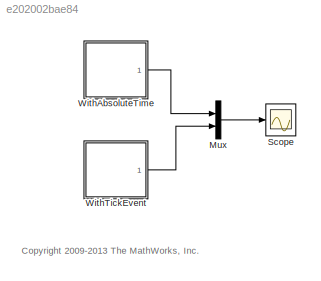
MODEL slx_e202002bae84
KIND model
CONFIG AbsTol = auto
CONFIG EnableMultiTasking = on
CONFIG FixedStep = 0.1
CONFIG MaxStep = auto
CONFIG MinStep = auto
CONFIG RelTol = 1e-3
CONFIG SampleTimeConstraint = Unconstrained
CONFIG Solver = FixedStepDiscrete
CONFIG SolverName = FixedStepDiscrete
CONFIG StartTime = 0.0
CONFIG StopTime = 10.0
BLOCK [Mux] Mux
  DisplayOption = bar
  Inputs = 2
  Ports = [2, 1]
BLOCK [Scope] Scope
  NumInputPorts = 1
  Ports = [1]
  ScopeSpecificationString = Simulink.scopes.TimeScopeBlockCfg('CurrentConfiguration', extmgr.ConfigurationSet(extmgr.Configuration('Core','General UI',true),extmgr.Configuration('Core','Source UI',true),extmgr.Configuration('Sources','WiredSimulink',true,'DataLoggingSaveFormat','StructureWithTime'),extmgr.Configuration('Visuals','Time Domain',true,'SerializedDisplays',{struct('MinYLimReal','0','MaxYLimReal','1','YLabelReal',...<+1677ch>
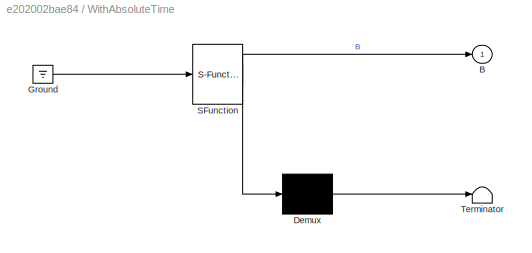
BLOCK [SubSystem] WithAbsoluteTime
  ErrorFcn = Stateflow.Translate.translate
  PermitHierarchicalResolution = ExplicitOnly
  Ports = [0, 1]
  RequestExecContextInheritance = off
  SFBlockType = Chart
  TreatAsAtomicUnit = on
  Variant = off
BLOCK [Outport] WithAbsoluteTime/ B
  IconDisplay = Port number
BLOCK [Demux] WithAbsoluteTime/ Demux 
  Outputs = 1
  Ports = [1, 1]
BLOCK [Ground] WithAbsoluteTime/ Ground 
BLOCK [S-Function] WithAbsoluteTime/ SFunction 
  EnableBusSupport = off
  FunctionName = sf_sfun
  PortCounts = [1 2]
  Ports = [1, 2]
  SFcnIsStateOwnerBlock = off
  SFunctionDeploymentMode = off
  Tag = Stateflow S-Function sf_abstemporal_basic 1
BLOCK [Terminator] WithAbsoluteTime/ Terminator 
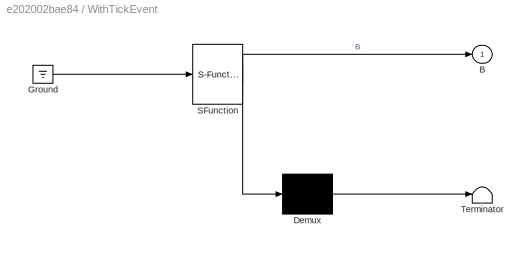
BLOCK [SubSystem] WithTickEvent
  ErrorFcn = Stateflow.Translate.translate
  PermitHierarchicalResolution = ExplicitOnly
  Ports = [0, 1]
  RequestExecContextInheritance = off
  SFBlockType = Chart
  TreatAsAtomicUnit = on
  Variant = off
BLOCK [Outport] WithTickEvent/ B
  IconDisplay = Port number
BLOCK [Demux] WithTickEvent/ Demux 
  Outputs = 1
  Ports = [1, 1]
BLOCK [Ground] WithTickEvent/ Ground 
BLOCK [S-Function] WithTickEvent/ SFunction 
  EnableBusSupport = off
  FunctionName = sf_sfun
  PortCounts = [1 2]
  Ports = [1, 2]
  SFcnIsStateOwnerBlock = off
  SFunctionDeploymentMode = off
  Tag = Stateflow S-Function sf_abstemporal_basic 2
BLOCK [Terminator] WithTickEvent/ Terminator 
ANNOTATION (root): <copyright redacted>
LINE Mux:1 -> Scope:1
LINE WithAbsoluteTime:1 -> Mux:1
LINE WithTickEvent:1 -> Mux:2
CHART WithAbsoluteTime states=2 transitions=2
  STATE_LABEL 'A'
  STATE_LABEL 'B'
CHART WithTickEvent states=2 transitions=2
  STATE_LABEL 'A'
  STATE_LABEL 'B'
